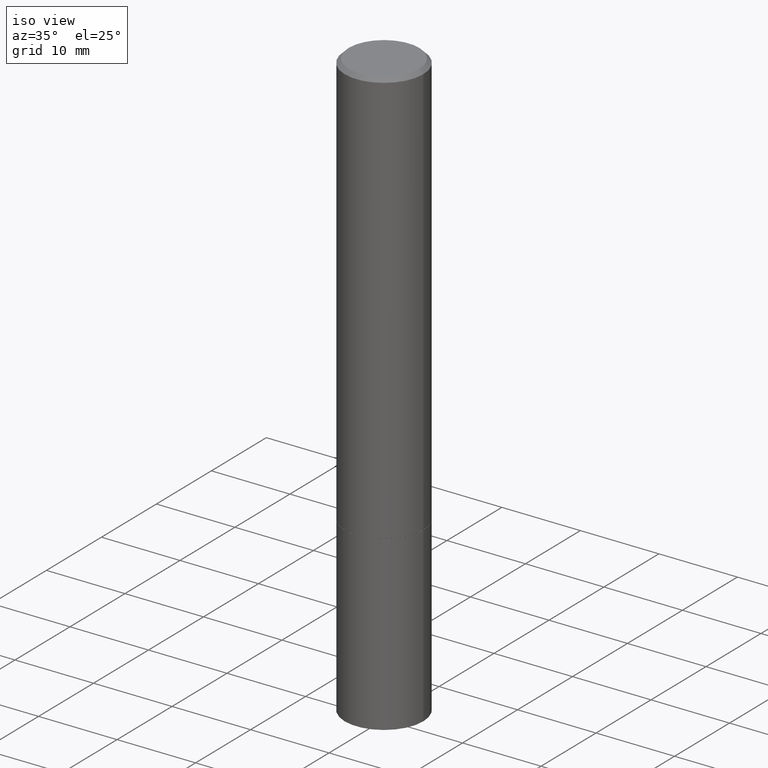
[diagram: clean part render]
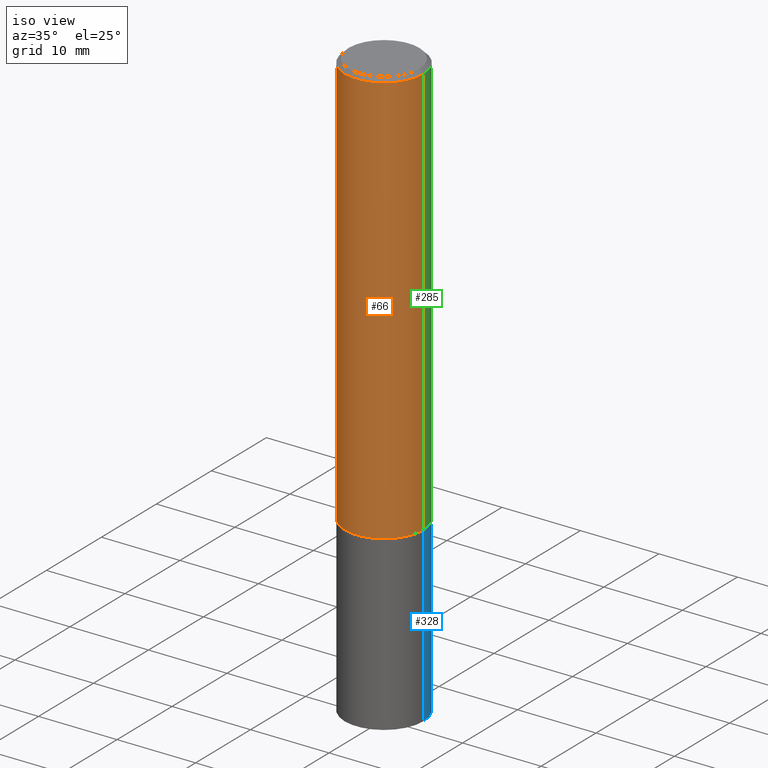
[diagram: same view with three faces highlighted in distinct colors, each labeled with its STEP entity id]
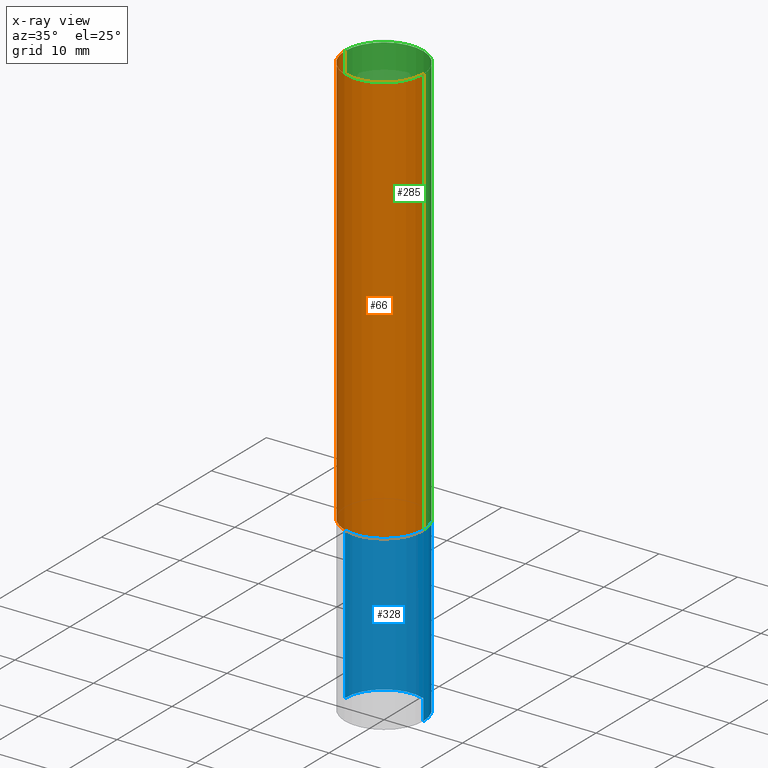
[diagram: x-ray of the same camera — body ghosted, the three highlighted faces saturated]
A machine part, iso view with three faces highlighted in distinct colors.
The next image is the same camera in x-ray (body ghosted, the three faces saturated) — at least one of them is partly hidden behind the body in this view.
Their STEP definitions:

[orange] entity #66 — the highlighted cylindrical surface (partial cylindrical patch) has radius 5 mm, axis along (-0, 0, 1).
#12 = EDGE_CURVE ( 'NONE', #190, #319, #282, .T. ) ;
#19 = DIRECTION ( 'NONE',  ( -2.445468806185136877E-29, 3.491481338843145188E-15, 1.000000000000000000 ) ) ;
#32 = DIRECTION ( 'NONE',  ( -2.445468806185136597E-29, 3.491481338843145583E-15, 1.000000000000000000 ) ) ;
#50 = AXIS2_PLACEMENT_3D ( 'NONE', #249, #139, #359 ) ;
#60 = CARTESIAN_POINT ( 'NONE',  ( 0.000000000000000000, 0.000000000000000000, 0.000000000000000000 ) ) ;
#66 = ADVANCED_FACE ( 'NONE', ( #207 ), #237, .T. ) ;
#85 = ORIENTED_EDGE ( 'NONE', *, *, #233, .T. ) ;
#93 = CARTESIAN_POINT ( 'NONE',  ( -0.1968500000000000250, -2.277302752257247033E-15, -2.085699999999999665 ) ) ;
#135 = CIRCLE ( 'NONE', #50, 0.1968500000000000250 ) ;
#139 = DIRECTION ( 'NONE',  ( -2.445468806185136597E-29, 3.491481338843145583E-15, 1.000000000000000000 ) ) ;
#140 = VECTOR ( 'NONE', #189, 39.37007874015748143 ) ;
#145 = DIRECTION ( 'NONE',  ( -2.445468806185136597E-29, 3.491481338843145583E-15, 1.000000000000000000 ) ) ;
#178 = AXIS2_PLACEMENT_3D ( 'NONE', #259, #32, #347 ) ;
#189 = DIRECTION ( 'NONE',  ( -2.445468806185136877E-29, 3.491481338843145188E-15, 1.000000000000000000 ) ) ;
#190 = VERTEX_POINT ( 'NONE', #241 ) ;
#192 = VECTOR ( 'NONE', #19, 39.37007874015748143 ) ;
#193 = CARTESIAN_POINT ( 'NONE',  ( 0.1968499999999997752, -1.420318657638187347E-15, -0.02000000000000001776 ) ) ;
#197 = ORIENTED_EDGE ( 'NONE', *, *, #12, .F. ) ;
#205 = ORIENTED_EDGE ( 'NONE', *, *, #244, .F. ) ;
#207 = FACE_OUTER_BOUND ( 'NONE', #314, .T. ) ;
#213 = CARTESIAN_POINT ( 'NONE',  ( -0.1968499999999999139, 1.398703375343756604E-15, -9.682923725166778072E-30 ) ) ;
#223 = VERTEX_POINT ( 'NONE', #93 ) ;
#232 = ORIENTED_EDGE ( 'NONE', *, *, #348, .T. ) ;
#233 = EDGE_CURVE ( 'NONE', #355, #319, #245, .T. ) ;
#237 = CYLINDRICAL_SURFACE ( 'NONE', #322, 0.1968499999999999139 ) ;
#241 = CARTESIAN_POINT ( 'NONE',  ( -0.1968499999999997752, 1.304766576325677127E-15, -0.02000000000000001776 ) ) ;
#244 = EDGE_CURVE ( 'NONE', #223, #190, #332, .T. ) ;
#245 = LINE ( 'NONE', #295, #192 ) ;
#248 = CARTESIAN_POINT ( 'NONE',  ( 0.1968500000000000250, -8.656778831527691107E-15, -2.085699999999999665 ) ) ;
#249 = CARTESIAN_POINT ( 'NONE',  ( 5.100514289060338336E-29, -7.282182628425147921E-15, -2.085699999999999665 ) ) ;
#256 = DIRECTION ( 'NONE',  ( 1.000000000000000000, -6.982962677686266711E-15, 4.876176775795935793E-29 ) ) ;
#259 = CARTESIAN_POINT ( 'NONE',  ( 4.890937612370276662E-31, -6.982962677686296539E-17, -0.02000000000000001776 ) ) ;
#282 = CIRCLE ( 'NONE', #178, 0.1968499999999997752 ) ;
#295 = CARTESIAN_POINT ( 'NONE',  ( 0.1968499999999999139, -1.374596203102541017E-15, 9.598753983154295253E-30 ) ) ;
#314 = EDGE_LOOP ( 'NONE', ( #205, #232, #85, #197 ) ) ;
#319 = VERTEX_POINT ( 'NONE', #193 ) ;
#322 = AXIS2_PLACEMENT_3D ( 'NONE', #60, #145, #256 ) ;
#332 = LINE ( 'NONE', #213, #140 ) ;
#347 = DIRECTION ( 'NONE',  ( 1.000000000000000000, -6.982962677686266711E-15, 0.000000000000000000 ) ) ;
#348 = EDGE_CURVE ( 'NONE', #223, #355, #135, .T. ) ;
#355 = VERTEX_POINT ( 'NONE', #248 ) ;
#359 = DIRECTION ( 'NONE',  ( 1.000000000000000000, -6.982962677686267499E-15, 0.000000000000000000 ) ) ;

[blue] entity #328 — the highlighted cylindrical surface (partial cylindrical patch) has radius 5 mm, axis along (-0, 0, 1).
#2 = EDGE_LOOP ( 'NONE', ( #311, #331, #308, #202 ) ) ;
#34 = VERTEX_POINT ( 'NONE', #88 ) ;
#37 = CIRCLE ( 'NONE', #275, 0.1968500000000000250 ) ;
#41 = CARTESIAN_POINT ( 'NONE',  ( 7.220980290903470182E-29, -1.030964609733603853E-14, -2.952799999999999869 ) ) ;
#49 = FACE_OUTER_BOUND ( 'NONE', #2, .T. ) ;
#65 = DIRECTION ( 'NONE',  ( -2.445468806185136877E-29, 3.491481338843145188E-15, 1.000000000000000000 ) ) ;
#68 = EDGE_CURVE ( 'NONE', #350, #274, #113, .T. ) ;
#72 = LINE ( 'NONE', #95, #315 ) ;
#77 = VERTEX_POINT ( 'NONE', #181 ) ;
#88 = CARTESIAN_POINT ( 'NONE',  ( -0.1968500000000000250, -7.398956728206258518E-15, -2.086699999999999999 ) ) ;
#95 = CARTESIAN_POINT ( 'NONE',  ( -0.1968500000000000250, 1.398703375343757393E-15, -9.682923725166783677E-30 ) ) ;
#99 = CARTESIAN_POINT ( 'NONE',  ( 0.1968500000000000250, -8.660270312866532536E-15, -2.086699999999999999 ) ) ;
#105 = CYLINDRICAL_SURFACE ( 'NONE', #247, 0.1968500000000000250 ) ;
#113 = LINE ( 'NONE', #325, #155 ) ;
#132 = EDGE_CURVE ( 'NONE', #350, #77, #133, .T. ) ;
#133 = CIRCLE ( 'NONE', #263, 0.1968500000000000250 ) ;
#155 = VECTOR ( 'NONE', #65, 39.37007874015748143 ) ;
#165 = CARTESIAN_POINT ( 'NONE',  ( 0.1968500000000000250, -1.168424230043858014E-14, -2.952799999999999869 ) ) ;
#166 = DIRECTION ( 'NONE',  ( -2.445468806185136597E-29, 3.491481338843145583E-15, 1.000000000000000000 ) ) ;
#181 = CARTESIAN_POINT ( 'NONE',  ( -0.1968500000000000250, -7.398956728206258518E-15, -2.952799999999999869 ) ) ;
#191 = DIRECTION ( 'NONE',  ( -2.445468806185136597E-29, 3.491481338843145583E-15, 1.000000000000000000 ) ) ;
#196 = CARTESIAN_POINT ( 'NONE',  ( 0.000000000000000000, 0.000000000000000000, 0.000000000000000000 ) ) ;
#200 = CARTESIAN_POINT ( 'NONE',  ( 5.102959757866523939E-29, -7.285674109763990928E-15, -2.086699999999999999 ) ) ;
#202 = ORIENTED_EDGE ( 'NONE', *, *, #68, .F. ) ;
#226 = DIRECTION ( 'NONE',  ( -2.445468806185136597E-29, 3.491481338843145583E-15, 1.000000000000000000 ) ) ;
#227 = EDGE_CURVE ( 'NONE', #77, #34, #72, .T. ) ;
#247 = AXIS2_PLACEMENT_3D ( 'NONE', #196, #226, #336 ) ;
#262 = DIRECTION ( 'NONE',  ( 1.000000000000000000, -6.982962677686267499E-15, 0.000000000000000000 ) ) ;
#263 = AXIS2_PLACEMENT_3D ( 'NONE', #41, #191, #262 ) ;
#274 = VERTEX_POINT ( 'NONE', #99 ) ;
#275 = AXIS2_PLACEMENT_3D ( 'NONE', #200, #166, #305 ) ;
#296 = DIRECTION ( 'NONE',  ( -2.445468806185136877E-29, 3.491481338843145188E-15, 1.000000000000000000 ) ) ;
#305 = DIRECTION ( 'NONE',  ( 1.000000000000000000, -6.982962677686267499E-15, 0.000000000000000000 ) ) ;
#308 = ORIENTED_EDGE ( 'NONE', *, *, #310, .F. ) ;
#310 = EDGE_CURVE ( 'NONE', #274, #34, #37, .T. ) ;
#311 = ORIENTED_EDGE ( 'NONE', *, *, #132, .T. ) ;
#315 = VECTOR ( 'NONE', #296, 39.37007874015748143 ) ;
#325 = CARTESIAN_POINT ( 'NONE',  ( 0.1968500000000000250, -1.374596203102541608E-15, 9.598753983154300858E-30 ) ) ;
#328 = ADVANCED_FACE ( 'NONE', ( #49 ), #105, .T. ) ;
#331 = ORIENTED_EDGE ( 'NONE', *, *, #227, .T. ) ;
#336 = DIRECTION ( 'NONE',  ( 1.000000000000000000, -6.982962677686265922E-15, 4.876176775795935793E-29 ) ) ;
#350 = VERTEX_POINT ( 'NONE', #165 ) ;

[green] entity #285 — the highlighted cylindrical surface (partial cylindrical patch) has radius 5 mm, axis along (-0, 0, 1).
#13 = DIRECTION ( 'NONE',  ( 1.000000000000000000, -6.982962677686266711E-15, 0.000000000000000000 ) ) ;
#19 = DIRECTION ( 'NONE',  ( -2.445468806185136877E-29, 3.491481338843145188E-15, 1.000000000000000000 ) ) ;
#30 = EDGE_LOOP ( 'NONE', ( #177, #63, #253, #71 ) ) ;
#63 = ORIENTED_EDGE ( 'NONE', *, *, #244, .T. ) ;
#71 = ORIENTED_EDGE ( 'NONE', *, *, #233, .F. ) ;
#76 = FACE_OUTER_BOUND ( 'NONE', #30, .T. ) ;
#91 = AXIS2_PLACEMENT_3D ( 'NONE', #277, #101, #159 ) ;
#93 = CARTESIAN_POINT ( 'NONE',  ( -0.1968500000000000250, -2.277302752257247033E-15, -2.085699999999999665 ) ) ;
#101 = DIRECTION ( 'NONE',  ( -2.445468806185136597E-29, 3.491481338843145583E-15, 1.000000000000000000 ) ) ;
#103 = CIRCLE ( 'NONE', #297, 0.1968499999999997752 ) ;
#134 = DIRECTION ( 'NONE',  ( -2.445468806185136597E-29, 3.491481338843145583E-15, 1.000000000000000000 ) ) ;
#138 = CARTESIAN_POINT ( 'NONE',  ( 0.000000000000000000, 0.000000000000000000, 0.000000000000000000 ) ) ;
#140 = VECTOR ( 'NONE', #189, 39.37007874015748143 ) ;
#159 = DIRECTION ( 'NONE',  ( 1.000000000000000000, -6.982962677686267499E-15, 0.000000000000000000 ) ) ;
#177 = ORIENTED_EDGE ( 'NONE', *, *, #353, .T. ) ;
#189 = DIRECTION ( 'NONE',  ( -2.445468806185136877E-29, 3.491481338843145188E-15, 1.000000000000000000 ) ) ;
#190 = VERTEX_POINT ( 'NONE', #241 ) ;
#192 = VECTOR ( 'NONE', #19, 39.37007874015748143 ) ;
#193 = CARTESIAN_POINT ( 'NONE',  ( 0.1968499999999997752, -1.420318657638187347E-15, -0.02000000000000001776 ) ) ;
#213 = CARTESIAN_POINT ( 'NONE',  ( -0.1968499999999999139, 1.398703375343756604E-15, -9.682923725166778072E-30 ) ) ;
#214 = EDGE_CURVE ( 'NONE', #319, #190, #103, .T. ) ;
#220 = CYLINDRICAL_SURFACE ( 'NONE', #243, 0.1968499999999999139 ) ;
#223 = VERTEX_POINT ( 'NONE', #93 ) ;
#233 = EDGE_CURVE ( 'NONE', #355, #319, #245, .T. ) ;
#241 = CARTESIAN_POINT ( 'NONE',  ( -0.1968499999999997752, 1.304766576325677127E-15, -0.02000000000000001776 ) ) ;
#243 = AXIS2_PLACEMENT_3D ( 'NONE', #138, #134, #312 ) ;
#244 = EDGE_CURVE ( 'NONE', #223, #190, #332, .T. ) ;
#245 = LINE ( 'NONE', #295, #192 ) ;
#248 = CARTESIAN_POINT ( 'NONE',  ( 0.1968500000000000250, -8.656778831527691107E-15, -2.085699999999999665 ) ) ;
#253 = ORIENTED_EDGE ( 'NONE', *, *, #214, .F. ) ;
#277 = CARTESIAN_POINT ( 'NONE',  ( 5.100514289060338336E-29, -7.282182628425147921E-15, -2.085699999999999665 ) ) ;
#285 = ADVANCED_FACE ( 'NONE', ( #76 ), #220, .T. ) ;
#295 = CARTESIAN_POINT ( 'NONE',  ( 0.1968499999999999139, -1.374596203102541017E-15, 9.598753983154295253E-30 ) ) ;
#297 = AXIS2_PLACEMENT_3D ( 'NONE', #354, #299, #13 ) ;
#299 = DIRECTION ( 'NONE',  ( -2.445468806185136597E-29, 3.491481338843145583E-15, 1.000000000000000000 ) ) ;
#312 = DIRECTION ( 'NONE',  ( 1.000000000000000000, -6.982962677686266711E-15, 4.876176775795935793E-29 ) ) ;
#319 = VERTEX_POINT ( 'NONE', #193 ) ;
#332 = LINE ( 'NONE', #213, #140 ) ;
#345 = CIRCLE ( 'NONE', #91, 0.1968500000000000250 ) ;
#353 = EDGE_CURVE ( 'NONE', #355, #223, #345, .T. ) ;
#354 = CARTESIAN_POINT ( 'NONE',  ( 4.890937612370276662E-31, -6.982962677686296539E-17, -0.02000000000000001776 ) ) ;
#355 = VERTEX_POINT ( 'NONE', #248 ) ;